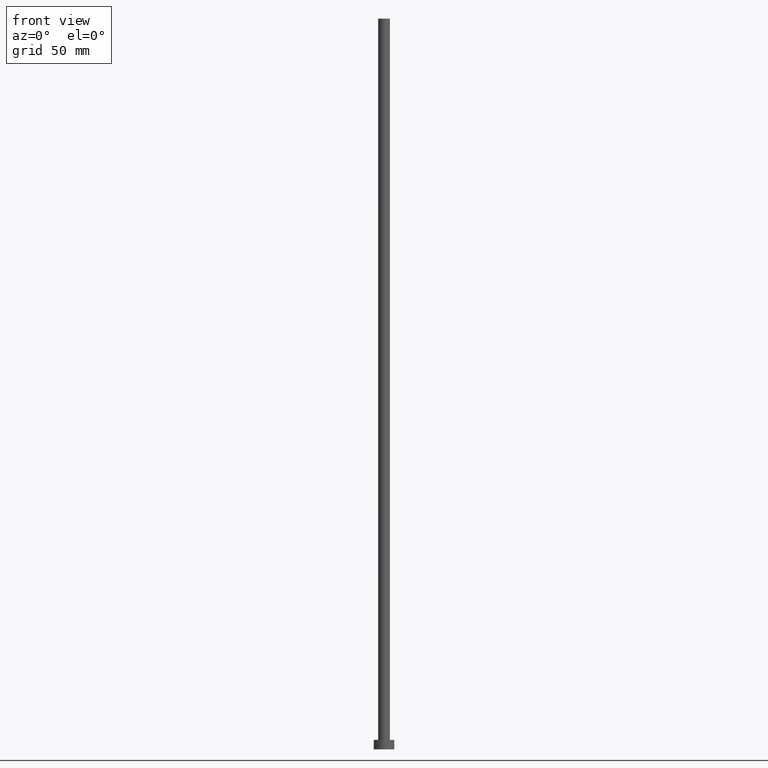
[diagram: clean part render]
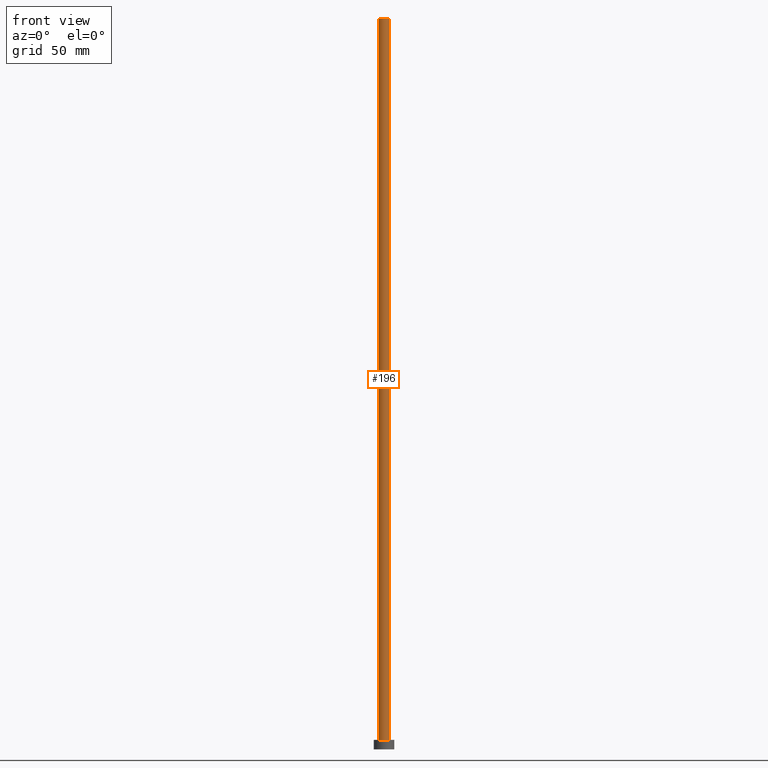
[diagram: same view with one face highlighted and labeled with its STEP entity id]
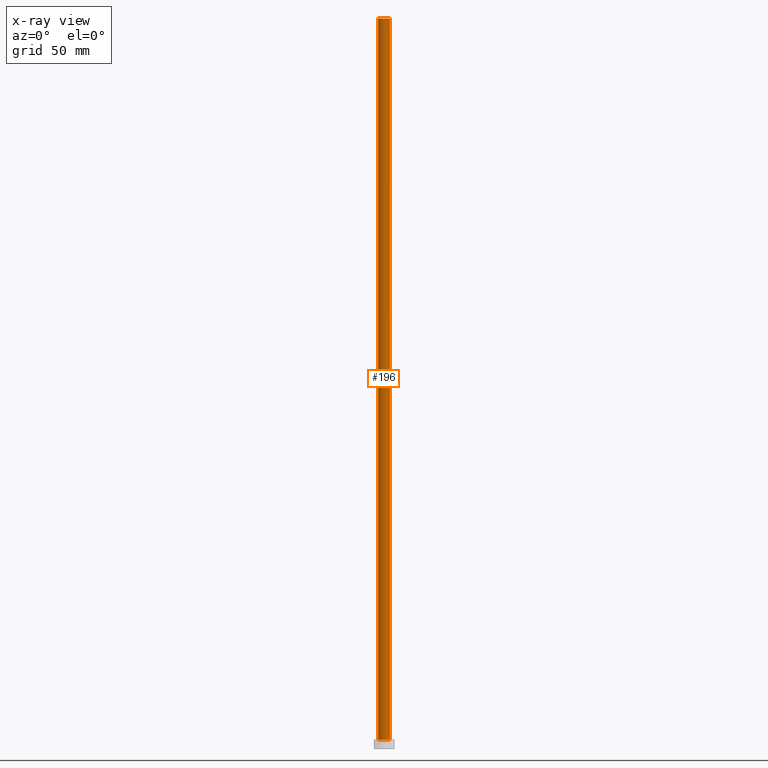
[diagram: x-ray of the same camera — body ghosted, the highlighted face saturated]
A machine part, front view. The second image highlights one B-rep face of the part: STEP entity #196.
The next image is the same camera in x-ray: the body ghosted, the highlighted face saturated — about 0% of this face is hidden behind the body in this view.
In plain terms, the highlighted cylindrical surface (edge-blend (fillet) strip) has radius 4 mm, axis along (-0, -0, -1).
Its self-contained STEP definition (entity closure, byte-faithful):
#3 = ORIENTED_EDGE ( 'NONE', *, *, #59, .T. ) ;
#16 = VECTOR ( 'NONE', #68, 1000.000000000000000 ) ;
#17 = VERTEX_POINT ( 'NONE', #128 ) ;
#23 = AXIS2_PLACEMENT_3D ( 'NONE', #110, #48, #148 ) ;
#30 = CARTESIAN_POINT ( 'NONE',  ( -4.000000000000000000, 0.000000000000000000, 500.0000000000000000 ) ) ;
#46 = CARTESIAN_POINT ( 'NONE',  ( -4.000000000000000000, 0.000000000000000000, 500.0000000000000000 ) ) ;
#48 = DIRECTION ( 'NONE',  ( 0.000000000000000000, 0.000000000000000000, 1.000000000000000000 ) ) ;
#56 = ORIENTED_EDGE ( 'NONE', *, *, #136, .T. ) ;
#59 = EDGE_CURVE ( 'NONE', #154, #17, #70, .T. ) ;
#68 = DIRECTION ( 'NONE',  ( -0.000000000000000000, -0.000000000000000000, -1.000000000000000000 ) ) ;
#70 = LINE ( 'NONE', #46, #16 ) ;
#76 = DIRECTION ( 'NONE',  ( -0.000000000000000000, -0.000000000000000000, -1.000000000000000000 ) ) ;
#78 = DIRECTION ( 'NONE',  ( -0.000000000000000000, -0.000000000000000000, -1.000000000000000000 ) ) ;
#86 = CARTESIAN_POINT ( 'NONE',  ( 4.000000000000000000, 4.898587196589412829E-16, 500.0000000000000000 ) ) ;
#87 = EDGE_CURVE ( 'NONE', #154, #125, #165, .T. ) ;
#97 = ORIENTED_EDGE ( 'NONE', *, *, #87, .F. ) ;
#100 = EDGE_LOOP ( 'NONE', ( #123, #97, #3, #56 ) ) ;
#109 = CARTESIAN_POINT ( 'NONE',  ( 4.000000000000000000, 4.898587196589412829E-16, 6.500000000000000000 ) ) ;
#110 = CARTESIAN_POINT ( 'NONE',  ( 0.000000000000000000, 0.000000000000000000, 6.500000000000000000 ) ) ;
#113 = DIRECTION ( 'NONE',  ( 1.000000000000000000, 0.000000000000000000, 0.000000000000000000 ) ) ;
#117 = DIRECTION ( 'NONE',  ( -1.000000000000000000, 0.000000000000000000, 0.000000000000000000 ) ) ;
#123 = ORIENTED_EDGE ( 'NONE', *, *, #175, .F. ) ;
#125 = VERTEX_POINT ( 'NONE', #86 ) ;
#128 = CARTESIAN_POINT ( 'NONE',  ( -4.000000000000000000, 0.000000000000000000, 6.500000000000000000 ) ) ;
#136 = EDGE_CURVE ( 'NONE', #17, #138, #244, .T. ) ;
#138 = VERTEX_POINT ( 'NONE', #109 ) ;
#148 = DIRECTION ( 'NONE',  ( 1.000000000000000000, 0.000000000000000000, 0.000000000000000000 ) ) ;
#150 = DIRECTION ( 'NONE',  ( 0.000000000000000000, 0.000000000000000000, 1.000000000000000000 ) ) ;
#154 = VERTEX_POINT ( 'NONE', #30 ) ;
#165 = CIRCLE ( 'NONE', #187, 4.000000000000000000 ) ;
#171 = CARTESIAN_POINT ( 'NONE',  ( 4.000000000000000000, 4.898587196589412829E-16, 500.0000000000000000 ) ) ;
#173 = LINE ( 'NONE', #171, #205 ) ;
#175 = EDGE_CURVE ( 'NONE', #125, #138, #173, .T. ) ;
#187 = AXIS2_PLACEMENT_3D ( 'NONE', #238, #150, #113 ) ;
#196 = ADVANCED_FACE ( 'NONE', ( #212 ), #243, .T. ) ;
#205 = VECTOR ( 'NONE', #78, 1000.000000000000000 ) ;
#212 = FACE_OUTER_BOUND ( 'NONE', #100, .T. ) ;
#237 = AXIS2_PLACEMENT_3D ( 'NONE', #245, #76, #117 ) ;
#238 = CARTESIAN_POINT ( 'NONE',  ( 0.000000000000000000, 0.000000000000000000, 500.0000000000000000 ) ) ;
#243 = CYLINDRICAL_SURFACE ( 'NONE', #237, 4.000000000000000000 ) ;
#244 = CIRCLE ( 'NONE', #23, 4.000000000000000000 ) ;
#245 = CARTESIAN_POINT ( 'NONE',  ( 0.000000000000000000, 0.000000000000000000, 500.0000000000000000 ) ) ;